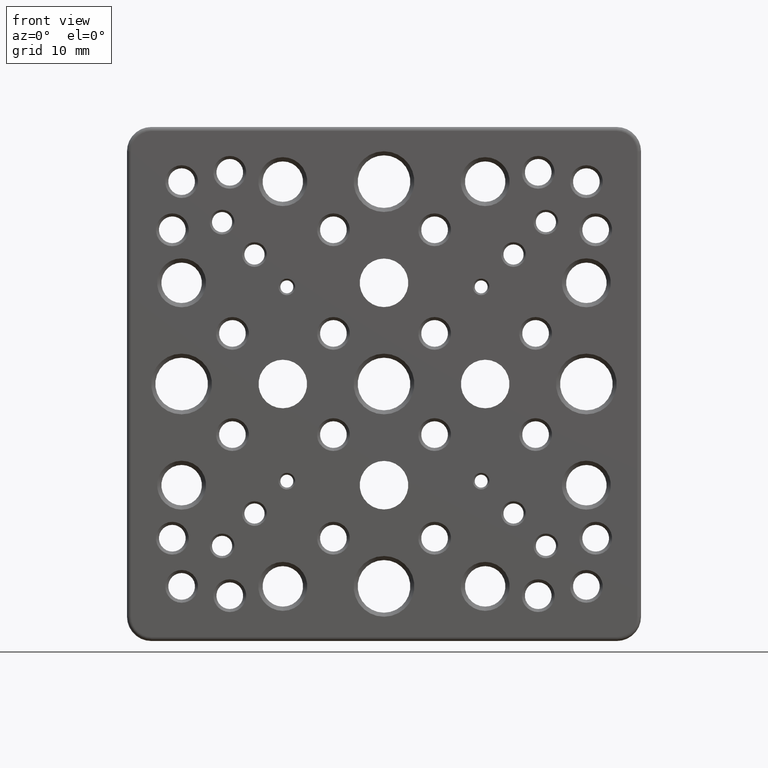
[diagram: clean part render]
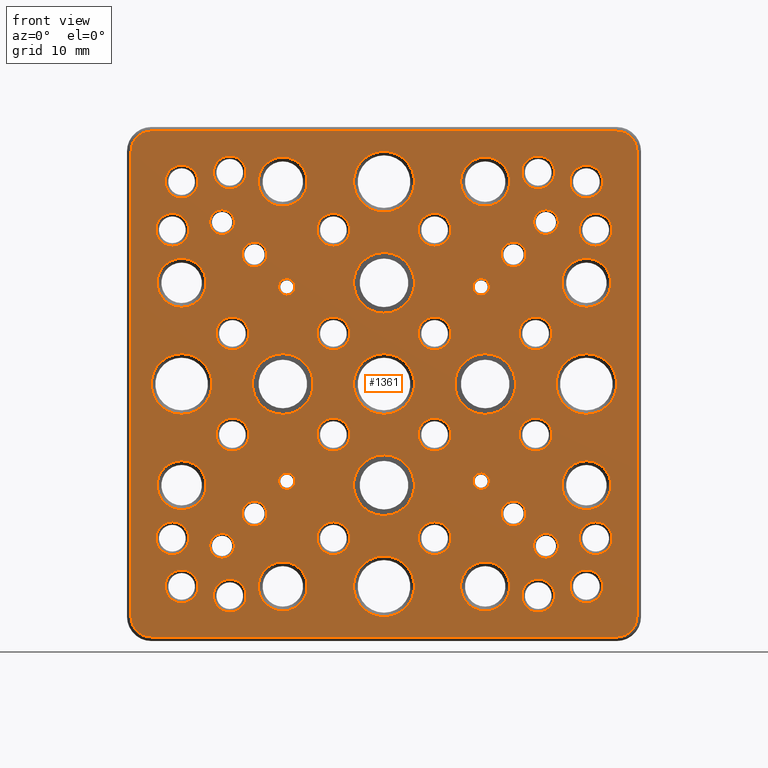
[diagram: same view with one face highlighted and labeled with its STEP entity id]
A machine part, front view. The second image highlights one B-rep face of the part: STEP entity #1361.
In plain terms, the highlighted planar face has unit normal (0, 1, 0).
Its self-contained STEP definition (entity closure, byte-faithful):
#4 = ORIENTED_EDGE ( 'NONE', *, *, #227, .F. ) ;
#6 = LINE ( 'NONE', #1012, #1642 ) ;
#7 = DIRECTION ( 'NONE',  ( 0.000000000000000000, 0.000000000000000000, -1.000000000000000000 ) ) ;
#17 = CARTESIAN_POINT ( 'NONE',  ( 12.00000000000000178, 0.000000000000000000, -13.02500000000000213 ) ) ;
#19 = AXIS2_PLACEMENT_3D ( 'NONE', #3150, #2188, #1275 ) ;
#25 = CARTESIAN_POINT ( 'NONE',  ( 26.14999999999999858, 0.000000000000000000, 19.05000000000000071 ) ) ;
#36 = DIRECTION ( 'NONE',  ( 0.000000000000000000, 1.000000000000000000, 0.000000000000000000 ) ) ;
#38 = DIRECTION ( 'NONE',  ( 0.000000000000000000, 0.000000000000000000, -1.000000000000000000 ) ) ;
#40 = DIRECTION ( 'NONE',  ( 0.000000000000000000, 0.000000000000000000, -1.000000000000000000 ) ) ;
#44 = CARTESIAN_POINT ( 'NONE',  ( 25.00000000000000000, 0.000000000000000000, 12.50000000000000000 ) ) ;
#49 = EDGE_LOOP ( 'NONE', ( #1472 ) ) ;
#51 = DIRECTION ( 'NONE',  ( 0.000000000000000000, 1.000000000000000000, 0.000000000000000000 ) ) ;
#54 = FACE_BOUND ( 'NONE', #2462, .T. ) ;
#56 = CARTESIAN_POINT ( 'NONE',  ( -6.250000000000002665, 0.000000000000000000, -8.275000000000003908 ) ) ;
#62 = DIRECTION ( 'NONE',  ( -0.000000000000000000, -1.000000000000000000, -0.000000000000000000 ) ) ;
#64 = EDGE_LOOP ( 'NONE', ( #522 ) ) ;
#65 = EDGE_CURVE ( 'NONE', #1395, #1395, #3591, .T. ) ;
#66 = CARTESIAN_POINT ( 'NONE',  ( 6.250000000000000888, 0.000000000000000000, 19.04999999999999716 ) ) ;
#83 = AXIS2_PLACEMENT_3D ( 'NONE', #860, #1807, #1155 ) ;
#84 = DIRECTION ( 'NONE',  ( 0.000000000000000000, 0.000000000000000000, -1.000000000000000000 ) ) ;
#91 = ORIENTED_EDGE ( 'NONE', *, *, #1239, .F. ) ;
#97 = FACE_BOUND ( 'NONE', #257, .T. ) ;
#117 = FACE_BOUND ( 'NONE', #807, .T. ) ;
#136 = EDGE_LOOP ( 'NONE', ( #2276 ) ) ;
#142 = EDGE_LOOP ( 'NONE', ( #553 ) ) ;
#152 = AXIS2_PLACEMENT_3D ( 'NONE', #2401, #3972, #3713 ) ;
#153 = AXIS2_PLACEMENT_3D ( 'NONE', #396, #2171, #2525 ) ;
#157 = EDGE_CURVE ( 'NONE', #3594, #3594, #3453, .T. ) ;
#160 = ORIENTED_EDGE ( 'NONE', *, *, #1014, .F. ) ;
#174 = CARTESIAN_POINT ( 'NONE',  ( 6.249999999999997335, 0.000000000000000000, -6.250000000000003553 ) ) ;
#198 = EDGE_LOOP ( 'NONE', ( #3309 ) ) ;
#199 = CARTESIAN_POINT ( 'NONE',  ( -28.74999999999998579, 0.000000000000000000, 28.75000000000000000 ) ) ;
#218 = ORIENTED_EDGE ( 'NONE', *, *, #3145, .T. ) ;
#224 = VERTEX_POINT ( 'NONE', #2117 ) ;
#227 = EDGE_CURVE ( 'NONE', #2749, #2749, #2435, .T. ) ;
#230 = CARTESIAN_POINT ( 'NONE',  ( 12.49999999999999822, 0.000000000000000000, 21.97500000000000142 ) ) ;
#232 = EDGE_CURVE ( 'NONE', #1507, #1507, #3682, .T. ) ;
#253 = EDGE_CURVE ( 'NONE', #3040, #3040, #3619, .T. ) ;
#254 = EDGE_CURVE ( 'NONE', #2143, #2143, #1907, .T. ) ;
#257 = EDGE_LOOP ( 'NONE', ( #1857 ) ) ;
#260 = ORIENTED_EDGE ( 'NONE', *, *, #1834, .T. ) ;
#271 = DIRECTION ( 'NONE',  ( -0.000000000000000000, -1.000000000000000000, -0.000000000000000000 ) ) ;
#276 = ORIENTED_EDGE ( 'NONE', *, *, #3570, .F. ) ;
#282 = ORIENTED_EDGE ( 'NONE', *, *, #3189, .F. ) ;
#284 = CARTESIAN_POINT ( 'NONE',  ( 6.249999999999996447, 0.000000000000000000, 4.224999999999996980 ) ) ;
#289 = VERTEX_POINT ( 'NONE', #3325 ) ;
#290 = AXIS2_PLACEMENT_3D ( 'NONE', #66, #2236, #648 ) ;
#296 = EDGE_LOOP ( 'NONE', ( #1593 ) ) ;
#306 = EDGE_LOOP ( 'NONE', ( #904 ) ) ;
#310 = EDGE_LOOP ( 'NONE', ( #260 ) ) ;
#330 = DIRECTION ( 'NONE',  ( 0.000000000000000000, 0.000000000000000000, 1.000000000000000000 ) ) ;
#338 = CIRCLE ( 'NONE', #2281, 1.524999999999998579 ) ;
#341 = FACE_BOUND ( 'NONE', #2576, .T. ) ;
#358 = DIRECTION ( 'NONE',  ( -0.000000000000000000, -1.000000000000000000, -0.000000000000000000 ) ) ;
#363 = FACE_BOUND ( 'NONE', #3896, .T. ) ;
#368 = ORIENTED_EDGE ( 'NONE', *, *, #157, .F. ) ;
#386 = DIRECTION ( 'NONE',  ( -0.000000000000000000, -1.000000000000000000, -0.000000000000000000 ) ) ;
#387 = VERTEX_POINT ( 'NONE', #3507 ) ;
#389 = VERTEX_POINT ( 'NONE', #1858 ) ;
#396 = CARTESIAN_POINT ( 'NONE',  ( -19.99999999999999645, 0.000000000000000000, -19.99999999999999289 ) ) ;
#401 = CIRCLE ( 'NONE', #3848, 1.524999999999998579 ) ;
#404 = FACE_BOUND ( 'NONE', #844, .T. ) ;
#407 = EDGE_CURVE ( 'NONE', #3383, #3383, #655, .T. ) ;
#410 = CIRCLE ( 'NONE', #2478, 3.024999999999999911 ) ;
#413 = VERTEX_POINT ( 'NONE', #765 ) ;
#416 = DIRECTION ( 'NONE',  ( -0.000000000000000000, -1.000000000000000000, -0.000000000000000000 ) ) ;
#423 = DIRECTION ( 'NONE',  ( 0.000000000000000000, 0.000000000000000000, -1.000000000000000000 ) ) ;
#426 = EDGE_CURVE ( 'NONE', #289, #289, #2412, .T. ) ;
#431 = FACE_BOUND ( 'NONE', #2177, .T. ) ;
#435 = ORIENTED_EDGE ( 'NONE', *, *, #1796, .F. ) ;
#437 = CARTESIAN_POINT ( 'NONE',  ( -24.99999999999999645, 0.000000000000000000, 22.97499999999999432 ) ) ;
#444 = EDGE_LOOP ( 'NONE', ( #1912 ) ) ;
#463 = DIRECTION ( 'NONE',  ( -0.000000000000000000, -1.000000000000000000, -0.000000000000000000 ) ) ;
#470 = FACE_BOUND ( 'NONE', #2717, .T. ) ;
#471 = AXIS2_PLACEMENT_3D ( 'NONE', #2316, #3574, #3895 ) ;
#476 = DIRECTION ( 'NONE',  ( 0.000000000000000000, 0.000000000000000000, -1.000000000000000000 ) ) ;
#478 = AXIS2_PLACEMENT_3D ( 'NONE', #1539, #1518, #2492 ) ;
#482 = CARTESIAN_POINT ( 'NONE',  ( 28.74999999999999645, 0.000000000000000000, -28.74999999999999289 ) ) ;
#499 = DIRECTION ( 'NONE',  ( 0.000000000000000000, 0.000000000000000000, -1.000000000000000000 ) ) ;
#502 = EDGE_LOOP ( 'NONE', ( #2647 ) ) ;
#508 = CARTESIAN_POINT ( 'NONE',  ( -6.250000000000000000, 0.000000000000000000, -21.07499999999999929 ) ) ;
#517 = VERTEX_POINT ( 'NONE', #3010 ) ;
#522 = ORIENTED_EDGE ( 'NONE', *, *, #1134, .F. ) ;
#523 = AXIS2_PLACEMENT_3D ( 'NONE', #2777, #2132, #3373 ) ;
#546 = EDGE_CURVE ( 'NONE', #387, #1529, #3330, .T. ) ;
#552 = AXIS2_PLACEMENT_3D ( 'NONE', #2937, #2565, #751 ) ;
#553 = ORIENTED_EDGE ( 'NONE', *, *, #863, .F. ) ;
#555 = CIRCLE ( 'NONE', #2437, 2.024999999999999023 ) ;
#560 = LINE ( 'NONE', #2407, #3402 ) ;
#562 = VERTEX_POINT ( 'NONE', #508 ) ;
#570 = EDGE_LOOP ( 'NONE', ( #1827 ) ) ;
#577 = DIRECTION ( 'NONE',  ( -2.185478394931410575E-16, 0.000000000000000000, -1.000000000000000000 ) ) ;
#596 = CIRCLE ( 'NONE', #478, 2.024999999999999911 ) ;
#607 = CARTESIAN_POINT ( 'NONE',  ( -24.99999999999998934, 0.000000000000000000, -12.50000000000000000 ) ) ;
#615 = DIRECTION ( 'NONE',  ( -0.000000000000000000, -1.000000000000000000, -0.000000000000000000 ) ) ;
#629 = CARTESIAN_POINT ( 'NONE',  ( -12.00000000000000178, 0.000000000000000000, 11.99999999999999822 ) ) ;
#633 = DIRECTION ( 'NONE',  ( 0.000000000000000000, 0.000000000000000000, -1.000000000000000000 ) ) ;
#642 = CARTESIAN_POINT ( 'NONE',  ( -16.00000000000000000, 0.000000000000000000, -17.52499999999999858 ) ) ;
#643 = CARTESIAN_POINT ( 'NONE',  ( 0.000000000000000000, -2.143131898507863367E-16, 12.50000000000000000 ) ) ;
#648 = DIRECTION ( 'NONE',  ( 0.000000000000000000, 0.000000000000000000, -1.000000000000000000 ) ) ;
#655 = CIRCLE ( 'NONE', #2349, 3.024999999999999911 ) ;
#659 = FACE_BOUND ( 'NONE', #3084, .T. ) ;
#663 = CIRCLE ( 'NONE', #2552, 2.025000000000000799 ) ;
#673 = DIRECTION ( 'NONE',  ( 0.000000000000000000, 1.000000000000000000, 0.000000000000000000 ) ) ;
#674 = DIRECTION ( 'NONE',  ( 0.000000000000000000, 1.000000000000000000, 0.000000000000000000 ) ) ;
#680 = DIRECTION ( 'NONE',  ( 0.000000000000000000, -0.000000000000000000, 1.000000000000000000 ) ) ;
#682 = AXIS2_PLACEMENT_3D ( 'NONE', #2955, #3298, #2054 ) ;
#684 = CARTESIAN_POINT ( 'NONE',  ( -28.74999999999998579, 0.000000000000000000, 31.25000000000000000 ) ) ;
#699 = EDGE_CURVE ( 'NONE', #3708, #3708, #822, .T. ) ;
#708 = DIRECTION ( 'NONE',  ( -0.000000000000000000, -1.000000000000000000, -0.000000000000000000 ) ) ;
#709 = CARTESIAN_POINT ( 'NONE',  ( 20.00000000000000355, 0.000000000000000000, -19.99999999999999289 ) ) ;
#713 = CARTESIAN_POINT ( 'NONE',  ( 12.00000000000000178, 0.000000000000000000, -12.00000000000000178 ) ) ;
#722 = FACE_BOUND ( 'NONE', #3244, .T. ) ;
#724 = CARTESIAN_POINT ( 'NONE',  ( 0.000000000000000000, 0.000000000000000000, 28.75000000000001066 ) ) ;
#725 = CIRCLE ( 'NONE', #849, 2.024999999999999023 ) ;
#729 = VERTEX_POINT ( 'NONE', #3910 ) ;
#733 = ORIENTED_EDGE ( 'NONE', *, *, #1249, .F. ) ;
#735 = CIRCLE ( 'NONE', #3731, 3.750000000000013767 ) ;
#739 = DIRECTION ( 'NONE',  ( -0.000000000000000000, -1.000000000000000000, -0.000000000000000000 ) ) ;
#740 = AXIS2_PLACEMENT_3D ( 'NONE', #3470, #673, #1905 ) ;
#750 = CARTESIAN_POINT ( 'NONE',  ( 16.00000000000000000, 0.000000000000000000, 16.00000000000000355 ) ) ;
#751 = DIRECTION ( 'NONE',  ( 0.000000000000000000, 0.000000000000000000, -1.000000000000000000 ) ) ;
#758 = ORIENTED_EDGE ( 'NONE', *, *, #3820, .T. ) ;
#765 = CARTESIAN_POINT ( 'NONE',  ( 6.250000000000000888, 0.000000000000000000, 17.02499999999999858 ) ) ;
#766 = FACE_BOUND ( 'NONE', #1619, .T. ) ;
#768 = EDGE_LOOP ( 'NONE', ( #1720 ) ) ;
#771 = AXIS2_PLACEMENT_3D ( 'NONE', #2491, #358, #633 ) ;
#777 = DIRECTION ( 'NONE',  ( 0.000000000000000000, 0.000000000000000000, 1.000000000000000000 ) ) ;
#781 = VERTEX_POINT ( 'NONE', #2025 ) ;
#793 = AXIS2_PLACEMENT_3D ( 'NONE', #2152, #1470, #2793 ) ;
#807 = EDGE_LOOP ( 'NONE', ( #1945 ) ) ;
#811 = VERTEX_POINT ( 'NONE', #684 ) ;
#817 = DIRECTION ( 'NONE',  ( 0.000000000000000000, 0.000000000000000000, -1.000000000000000000 ) ) ;
#822 = CIRCLE ( 'NONE', #1921, 2.024999999999999023 ) ;
#825 = ORIENTED_EDGE ( 'NONE', *, *, #2264, .F. ) ;
#833 = VERTEX_POINT ( 'NONE', #1439 ) ;
#844 = EDGE_LOOP ( 'NONE', ( #4025 ) ) ;
#849 = AXIS2_PLACEMENT_3D ( 'NONE', #2501, #62, #1940 ) ;
#857 = CIRCLE ( 'NONE', #793, 2.024999999999999023 ) ;
#860 = CARTESIAN_POINT ( 'NONE',  ( 6.250000000000000888, 0.000000000000000000, -19.05000000000000071 ) ) ;
#863 = EDGE_CURVE ( 'NONE', #2063, #2063, #3631, .T. ) ;
#873 = CARTESIAN_POINT ( 'NONE',  ( 12.50000000000000533, 0.000000000000000000, -25.00000000000000000 ) ) ;
#881 = VERTEX_POINT ( 'NONE', #1179 ) ;
#893 = CARTESIAN_POINT ( 'NONE',  ( 19.04999999999999716, 0.000000000000000000, 26.14999999999999503 ) ) ;
#904 = ORIENTED_EDGE ( 'NONE', *, *, #4011, .F. ) ;
#905 = EDGE_CURVE ( 'NONE', #3066, #811, #1937, .T. ) ;
#906 = CARTESIAN_POINT ( 'NONE',  ( 25.00000000000000355, 0.000000000000000000, 22.97499999999999432 ) ) ;
#911 = DIRECTION ( 'NONE',  ( 0.000000000000000000, 0.000000000000000000, -1.000000000000000000 ) ) ;
#919 = CIRCLE ( 'NONE', #3729, 3.750000000000023981 ) ;
#930 = EDGE_LOOP ( 'NONE', ( #3644 ) ) ;
#939 = VERTEX_POINT ( 'NONE', #2179 ) ;
#942 = EDGE_CURVE ( 'NONE', #1464, #1464, #2526, .T. ) ;
#953 = ORIENTED_EDGE ( 'NONE', *, *, #1835, .F. ) ;
#958 = EDGE_LOOP ( 'NONE', ( #2924 ) ) ;
#962 = CARTESIAN_POINT ( 'NONE',  ( 12.50000000000000355, -2.143131898507863367E-16, -3.750000000000013767 ) ) ;
#966 = EDGE_LOOP ( 'NONE', ( #3147 ) ) ;
#975 = DIRECTION ( 'NONE',  ( 0.000000000000000000, 0.000000000000000000, -1.000000000000000000 ) ) ;
#980 = ORIENTED_EDGE ( 'NONE', *, *, #407, .F. ) ;
#981 = FACE_BOUND ( 'NONE', #2768, .T. ) ;
#991 = DIRECTION ( 'NONE',  ( -0.000000000000000000, -1.000000000000000000, -0.000000000000000000 ) ) ;
#999 = DIRECTION ( 'NONE',  ( -0.000000000000000000, -1.000000000000000000, -0.000000000000000000 ) ) ;
#1002 = FACE_BOUND ( 'NONE', #2263, .T. ) ;
#1012 = CARTESIAN_POINT ( 'NONE',  ( 31.25000000000000711, 0.000000000000000000, -6.829619984160659821E-15 ) ) ;
#1014 = EDGE_CURVE ( 'NONE', #3426, #3426, #2659, .T. ) ;
#1020 = FACE_BOUND ( 'NONE', #3043, .T. ) ;
#1025 = VERTEX_POINT ( 'NONE', #3528 ) ;
#1027 = DIRECTION ( 'NONE',  ( -0.000000000000000000, -1.000000000000000000, -0.000000000000000000 ) ) ;
#1028 = VECTOR ( 'NONE', #3718, 1000.000000000000000 ) ;
#1029 = ORIENTED_EDGE ( 'NONE', *, *, #2506, .F. ) ;
#1033 = CARTESIAN_POINT ( 'NONE',  ( -24.99999999999999645, 0.000000000000000000, 24.99999999999999289 ) ) ;
#1046 = DIRECTION ( 'NONE',  ( -0.000000000000000000, -1.000000000000000000, -0.000000000000000000 ) ) ;
#1047 = CIRCLE ( 'NONE', #3339, 2.024999999999999023 ) ;
#1066 = FACE_BOUND ( 'NONE', #958, .T. ) ;
#1076 = CARTESIAN_POINT ( 'NONE',  ( -28.75000000000000000, 0.000000000000000000, -31.25000000000000000 ) ) ;
#1083 = FACE_BOUND ( 'NONE', #1686, .T. ) ;
#1084 = DIRECTION ( 'NONE',  ( -0.000000000000000000, -1.000000000000000000, -0.000000000000000000 ) ) ;
#1086 = ORIENTED_EDGE ( 'NONE', *, *, #2697, .F. ) ;
#1103 = EDGE_CURVE ( 'NONE', #1590, #1590, #2189, .T. ) ;
#1105 = AXIS2_PLACEMENT_3D ( 'NONE', #482, #1711, #2972 ) ;
#1116 = AXIS2_PLACEMENT_3D ( 'NONE', #2824, #36, #680 ) ;
#1119 = DIRECTION ( 'NONE',  ( -0.000000000000000000, -1.000000000000000000, -0.000000000000000000 ) ) ;
#1134 = EDGE_CURVE ( 'NONE', #1939, #1939, #2214, .T. ) ;
#1140 = VERTEX_POINT ( 'NONE', #284 ) ;
#1153 = EDGE_LOOP ( 'NONE', ( #2693 ) ) ;
#1155 = DIRECTION ( 'NONE',  ( 0.000000000000000000, 0.000000000000000000, -1.000000000000000000 ) ) ;
#1173 = ORIENTED_EDGE ( 'NONE', *, *, #3789, .F. ) ;
#1175 = DIRECTION ( 'NONE',  ( -0.000000000000000000, -1.000000000000000000, -0.000000000000000000 ) ) ;
#1179 = CARTESIAN_POINT ( 'NONE',  ( 25.00000000000000000, 0.000000000000000000, 3.750000000000023981 ) ) ;
#1191 = EDGE_CURVE ( 'NONE', #2563, #2563, #725, .T. ) ;
#1224 = DIRECTION ( 'NONE',  ( 0.000000000000000000, 0.000000000000000000, -1.000000000000000000 ) ) ;
#1229 = EDGE_CURVE ( 'NONE', #389, #389, #1556, .T. ) ;
#1230 = CIRCLE ( 'NONE', #3653, 2.024999999999999023 ) ;
#1233 = CIRCLE ( 'NONE', #83, 2.024999999999999023 ) ;
#1237 = DIRECTION ( 'NONE',  ( 0.000000000000000000, 0.000000000000000000, -1.000000000000000000 ) ) ;
#1239 = EDGE_CURVE ( 'NONE', #3768, #3768, #1230, .T. ) ;
#1249 = EDGE_CURVE ( 'NONE', #3203, #3203, #338, .T. ) ;
#1265 = FACE_BOUND ( 'NONE', #3032, .T. ) ;
#1275 = DIRECTION ( 'NONE',  ( 0.000000000000000000, 0.000000000000000000, -1.000000000000000000 ) ) ;
#1283 = FACE_BOUND ( 'NONE', #3343, .T. ) ;
#1285 = CARTESIAN_POINT ( 'NONE',  ( 6.250000000000000888, 0.000000000000000000, -21.07499999999999929 ) ) ;
#1286 = CIRCLE ( 'NONE', #2667, 1.024999999999999911 ) ;
#1293 = DIRECTION ( 'NONE',  ( -0.000000000000000000, -1.000000000000000000, -0.000000000000000000 ) ) ;
#1300 = AXIS2_PLACEMENT_3D ( 'NONE', #2852, #3465, #3119 ) ;
#1303 = FACE_BOUND ( 'NONE', #3038, .T. ) ;
#1306 = VERTEX_POINT ( 'NONE', #2557 ) ;
#1315 = ORIENTED_EDGE ( 'NONE', *, *, #905, .T. ) ;
#1325 = FACE_BOUND ( 'NONE', #3746, .T. ) ;
#1330 = VERTEX_POINT ( 'NONE', #3550 ) ;
#1336 = CARTESIAN_POINT ( 'NONE',  ( 0.000000000000000000, 0.000000000000000000, 25.00000000000000000 ) ) ;
#1342 = FACE_BOUND ( 'NONE', #3694, .T. ) ;
#1344 = CARTESIAN_POINT ( 'NONE',  ( -19.99999999999999645, 0.000000000000000000, -21.52499999999999147 ) ) ;
#1348 = CARTESIAN_POINT ( 'NONE',  ( 11.99999999999999822, 0.000000000000000000, 10.97499999999999787 ) ) ;
#1358 = VERTEX_POINT ( 'NONE', #1967 ) ;
#1361 = ADVANCED_FACE ( 'NONE', ( #766, #3265, #2936, #1066, #470, #1391, #1406, #1083, #2331, #2666, #1933, #1566, #1628, #1020, #3780, #2196, #2845, #659, #1325, #1002, #117, #1265, #3157, #3197, #3455, #2289, #981, #2577, #1303, #404, #3825, #341, #363, #1894, #1342, #1872, #2890, #1585, #54, #3176, #97, #2265, #1283, #431, #3845, #1650, #2512, #2533, #3521, #3132, #722, #2596, #2224, #1955 ), #3479, .F. ) ;
#1370 = VERTEX_POINT ( 'NONE', #2271 ) ;
#1390 = VERTEX_POINT ( 'NONE', #1348 ) ;
#1391 = FACE_BOUND ( 'NONE', #1974, .T. ) ;
#1395 = VERTEX_POINT ( 'NONE', #2649 ) ;
#1406 = FACE_BOUND ( 'NONE', #142, .T. ) ;
#1409 = AXIS2_PLACEMENT_3D ( 'NONE', #1762, #3385, #1465 ) ;
#1411 = EDGE_CURVE ( 'NONE', #811, #2791, #1830, .T. ) ;
#1412 = DIRECTION ( 'NONE',  ( 0.000000000000000000, 0.000000000000000000, -1.000000000000000000 ) ) ;
#1423 = AXIS2_PLACEMENT_3D ( 'NONE', #1567, #1449, #38 ) ;
#1428 = AXIS2_PLACEMENT_3D ( 'NONE', #3674, #2065, #1844 ) ;
#1434 = CIRCLE ( 'NONE', #153, 1.524999999999998579 ) ;
#1439 = CARTESIAN_POINT ( 'NONE',  ( -24.99999999999999289, 0.000000000000000000, 3.750000000000023981 ) ) ;
#1445 = ORIENTED_EDGE ( 'NONE', *, *, #546, .T. ) ;
#1449 = DIRECTION ( 'NONE',  ( -0.000000000000000000, -1.000000000000000000, -0.000000000000000000 ) ) ;
#1451 = DIRECTION ( 'NONE',  ( -0.000000000000000000, -1.000000000000000000, -0.000000000000000000 ) ) ;
#1459 = EDGE_LOOP ( 'NONE', ( #3839 ) ) ;
#1464 = VERTEX_POINT ( 'NONE', #2727 ) ;
#1465 = DIRECTION ( 'NONE',  ( 0.000000000000000000, 0.000000000000000000, -1.000000000000000000 ) ) ;
#1470 = DIRECTION ( 'NONE',  ( -0.000000000000000000, -1.000000000000000000, -0.000000000000000000 ) ) ;
#1472 = ORIENTED_EDGE ( 'NONE', *, *, #2382, .T. ) ;
#1490 = CARTESIAN_POINT ( 'NONE',  ( -26.14999999999999503, 0.000000000000000000, -19.04999999999999361 ) ) ;
#1494 = AXIS2_PLACEMENT_3D ( 'NONE', #1336, #2837, #2588 ) ;
#1501 = EDGE_CURVE ( 'NONE', #1548, #1548, #555, .T. ) ;
#1507 = VERTEX_POINT ( 'NONE', #3026 ) ;
#1518 = DIRECTION ( 'NONE',  ( -0.000000000000000000, -1.000000000000000000, -0.000000000000000000 ) ) ;
#1519 = ORIENTED_EDGE ( 'NONE', *, *, #2651, .T. ) ;
#1520 = EDGE_CURVE ( 'NONE', #2500, #2500, #3356, .T. ) ;
#1528 = DIRECTION ( 'NONE',  ( -0.000000000000000000, -1.000000000000000000, -0.000000000000000000 ) ) ;
#1529 = VERTEX_POINT ( 'NONE', #1076 ) ;
#1533 = DIRECTION ( 'NONE',  ( 2.185478394931410575E-16, -0.000000000000000000, 1.000000000000000000 ) ) ;
#1539 = CARTESIAN_POINT ( 'NONE',  ( -6.250000000000002665, 0.000000000000000000, -6.250000000000004441 ) ) ;
#1548 = VERTEX_POINT ( 'NONE', #1900 ) ;
#1551 = EDGE_CURVE ( 'NONE', #3750, #3750, #401, .T. ) ;
#1556 = CIRCLE ( 'NONE', #3856, 3.750000000000013767 ) ;
#1559 = EDGE_LOOP ( 'NONE', ( #91 ) ) ;
#1566 = FACE_BOUND ( 'NONE', #966, .T. ) ;
#1567 = CARTESIAN_POINT ( 'NONE',  ( -6.250000000000000000, 0.000000000000000000, -19.05000000000000071 ) ) ;
#1578 = AXIS2_PLACEMENT_3D ( 'NONE', #709, #2206, #1639 ) ;
#1585 = FACE_BOUND ( 'NONE', #306, .T. ) ;
#1587 = VERTEX_POINT ( 'NONE', #56 ) ;
#1590 = VERTEX_POINT ( 'NONE', #2540 ) ;
#1593 = ORIENTED_EDGE ( 'NONE', *, *, #1103, .F. ) ;
#1604 = EDGE_LOOP ( 'NONE', ( #1315, #3964, #218, #1445, #2011, #3449, #3107, #2395 ) ) ;
#1608 = CIRCLE ( 'NONE', #771, 3.024999999999999911 ) ;
#1612 = CARTESIAN_POINT ( 'NONE',  ( 16.00000000000000000, 0.000000000000000000, 14.47500000000000497 ) ) ;
#1619 = EDGE_LOOP ( 'NONE', ( #1173 ) ) ;
#1626 = CIRCLE ( 'NONE', #1105, 2.499999999999998668 ) ;
#1628 = FACE_BOUND ( 'NONE', #1676, .T. ) ;
#1639 = DIRECTION ( 'NONE',  ( 0.000000000000000000, 0.000000000000000000, -1.000000000000000000 ) ) ;
#1640 = EDGE_CURVE ( 'NONE', #2982, #2982, #2868, .T. ) ;
#1642 = VECTOR ( 'NONE', #1533, 1000.000000000000000 ) ;
#1650 = FACE_BOUND ( 'NONE', #444, .T. ) ;
#1653 = DIRECTION ( 'NONE',  ( -1.000000000000000000, 0.000000000000000000, -0.000000000000000000 ) ) ;
#1655 = EDGE_CURVE ( 'NONE', #729, #729, #3641, .T. ) ;
#1676 = EDGE_LOOP ( 'NONE', ( #435 ) ) ;
#1678 = DIRECTION ( 'NONE',  ( 0.000000000000000000, 0.000000000000000000, -1.000000000000000000 ) ) ;
#1686 = EDGE_LOOP ( 'NONE', ( #1765 ) ) ;
#1701 = CIRCLE ( 'NONE', #3925, 1.024999999999999911 ) ;
#1708 = DIRECTION ( 'NONE',  ( 0.000000000000000000, 0.000000000000000000, -1.000000000000000000 ) ) ;
#1709 = CIRCLE ( 'NONE', #3413, 2.024999999999999023 ) ;
#1711 = DIRECTION ( 'NONE',  ( -0.000000000000000000, -1.000000000000000000, -0.000000000000000000 ) ) ;
#1712 = EDGE_CURVE ( 'NONE', #1529, #2466, #2133, .T. ) ;
#1715 = DIRECTION ( 'NONE',  ( -0.000000000000000000, -1.000000000000000000, -0.000000000000000000 ) ) ;
#1720 = ORIENTED_EDGE ( 'NONE', *, *, #1191, .F. ) ;
#1734 = DIRECTION ( 'NONE',  ( -0.000000000000000000, -1.000000000000000000, -0.000000000000000000 ) ) ;
#1747 = EDGE_LOOP ( 'NONE', ( #2776 ) ) ;
#1754 = VERTEX_POINT ( 'NONE', #3358 ) ;
#1762 = CARTESIAN_POINT ( 'NONE',  ( -19.04999999999999716, 0.000000000000000000, -26.15000000000000213 ) ) ;
#1765 = ORIENTED_EDGE ( 'NONE', *, *, #1655, .F. ) ;
#1788 = CARTESIAN_POINT ( 'NONE',  ( -12.50000000000000178, 0.000000000000000000, 25.00000000000000000 ) ) ;
#1792 = DIRECTION ( 'NONE',  ( 0.000000000000000000, 0.000000000000000000, -1.000000000000000000 ) ) ;
#1796 = EDGE_CURVE ( 'NONE', #781, #781, #1608, .T. ) ;
#1802 = CARTESIAN_POINT ( 'NONE',  ( 12.50000000000000355, -2.143131898507863367E-16, 0.000000000000000000 ) ) ;
#1807 = DIRECTION ( 'NONE',  ( -0.000000000000000000, -1.000000000000000000, -0.000000000000000000 ) ) ;
#1817 = AXIS2_PLACEMENT_3D ( 'NONE', #3254, #2341, #499 ) ;
#1827 = ORIENTED_EDGE ( 'NONE', *, *, #3854, .T. ) ;
#1830 = CIRCLE ( 'NONE', #2159, 2.499999999999998668 ) ;
#1834 = EDGE_CURVE ( 'NONE', #2643, #2643, #3905, .T. ) ;
#1835 = EDGE_CURVE ( 'NONE', #1390, #1390, #1286, .T. ) ;
#1844 = DIRECTION ( 'NONE',  ( 0.000000000000000000, 0.000000000000000000, -1.000000000000000000 ) ) ;
#1854 = VERTEX_POINT ( 'NONE', #962 ) ;
#1856 = CARTESIAN_POINT ( 'NONE',  ( 25.00000000000000355, 0.000000000000000000, 24.99999999999999289 ) ) ;
#1857 = ORIENTED_EDGE ( 'NONE', *, *, #1917, .F. ) ;
#1858 = CARTESIAN_POINT ( 'NONE',  ( -12.50000000000000000, -2.143131898507863367E-16, -3.750000000000013767 ) ) ;
#1861 = EDGE_LOOP ( 'NONE', ( #1086 ) ) ;
#1863 = DIRECTION ( 'NONE',  ( -0.000000000000000000, -1.000000000000000000, -0.000000000000000000 ) ) ;
#1866 = CIRCLE ( 'NONE', #1931, 2.024999999999999911 ) ;
#1872 = FACE_BOUND ( 'NONE', #1459, .T. ) ;
#1877 = ORIENTED_EDGE ( 'NONE', *, *, #1640, .F. ) ;
#1880 = DIRECTION ( 'NONE',  ( -0.000000000000000000, -1.000000000000000000, -0.000000000000000000 ) ) ;
#1886 = ORIENTED_EDGE ( 'NONE', *, *, #3720, .F. ) ;
#1890 = CIRCLE ( 'NONE', #3794, 1.024999999999999911 ) ;
#1894 = FACE_BOUND ( 'NONE', #3302, .T. ) ;
#1900 = CARTESIAN_POINT ( 'NONE',  ( 26.14999999999999858, 0.000000000000000000, -21.07499999999999218 ) ) ;
#1902 = EDGE_CURVE ( 'NONE', #1370, #1370, #2862, .T. ) ;
#1905 = DIRECTION ( 'NONE',  ( 0.000000000000000000, 0.000000000000000000, 1.000000000000000000 ) ) ;
#1907 = CIRCLE ( 'NONE', #1578, 1.524999999999998579 ) ;
#1912 = ORIENTED_EDGE ( 'NONE', *, *, #1229, .F. ) ;
#1917 = EDGE_CURVE ( 'NONE', #3851, #3851, #3315, .T. ) ;
#1921 = AXIS2_PLACEMENT_3D ( 'NONE', #1856, #2140, #1792 ) ;
#1923 = EDGE_LOOP ( 'NONE', ( #1886 ) ) ;
#1931 = AXIS2_PLACEMENT_3D ( 'NONE', #2986, #2300, #1412 ) ;
#1933 = FACE_BOUND ( 'NONE', #3706, .T. ) ;
#1937 = LINE ( 'NONE', #3225, #3255 ) ;
#1939 = VERTEX_POINT ( 'NONE', #2519 ) ;
#1940 = DIRECTION ( 'NONE',  ( 0.000000000000000000, 0.000000000000000000, -1.000000000000000000 ) ) ;
#1945 = ORIENTED_EDGE ( 'NONE', *, *, #3571, .F. ) ;
#1955 = FACE_OUTER_BOUND ( 'NONE', #1604, .T. ) ;
#1957 = AXIS2_PLACEMENT_3D ( 'NONE', #873, #2109, #911 ) ;
#1963 = CARTESIAN_POINT ( 'NONE',  ( 0.000000000000000000, 0.000000000000000000, -21.24999999999999289 ) ) ;
#1967 = CARTESIAN_POINT ( 'NONE',  ( 31.24999999999999645, 0.000000000000000000, -28.74999999999999289 ) ) ;
#1974 = EDGE_LOOP ( 'NONE', ( #2160 ) ) ;
#1987 = CARTESIAN_POINT ( 'NONE',  ( -12.50000000000000178, 0.000000000000000000, 21.97500000000000142 ) ) ;
#1993 = ORIENTED_EDGE ( 'NONE', *, *, #3936, .F. ) ;
#1999 = VERTEX_POINT ( 'NONE', #2579 ) ;
#2011 = ORIENTED_EDGE ( 'NONE', *, *, #1712, .T. ) ;
#2025 = CARTESIAN_POINT ( 'NONE',  ( -24.99999999999999289, 0.000000000000000000, 9.475000000000001421 ) ) ;
#2042 = CARTESIAN_POINT ( 'NONE',  ( -26.14999999999999503, 0.000000000000000000, -21.07499999999999218 ) ) ;
#2052 = EDGE_CURVE ( 'NONE', #2466, #1358, #1626, .T. ) ;
#2054 = DIRECTION ( 'NONE',  ( 0.000000000000000000, 0.000000000000000000, -1.000000000000000000 ) ) ;
#2063 = VERTEX_POINT ( 'NONE', #3950 ) ;
#2065 = DIRECTION ( 'NONE',  ( -0.000000000000000000, -1.000000000000000000, -0.000000000000000000 ) ) ;
#2067 = VERTEX_POINT ( 'NONE', #724 ) ;
#2081 = CIRCLE ( 'NONE', #2288, 2.024999999999999911 ) ;
#2091 = EDGE_CURVE ( 'NONE', #1330, #1330, #3211, .T. ) ;
#2097 = AXIS2_PLACEMENT_3D ( 'NONE', #44, #1880, #2752 ) ;
#2107 = ORIENTED_EDGE ( 'NONE', *, *, #2091, .F. ) ;
#2109 = DIRECTION ( 'NONE',  ( -0.000000000000000000, -1.000000000000000000, -0.000000000000000000 ) ) ;
#2114 = CARTESIAN_POINT ( 'NONE',  ( 28.75000000000001066, 0.000000000000000000, 31.25000000000000711 ) ) ;
#2116 = EDGE_LOOP ( 'NONE', ( #2269 ) ) ;
#2117 = CARTESIAN_POINT ( 'NONE',  ( 0.000000000000000000, 0.000000000000000000, 3.750000000000023981 ) ) ;
#2121 = CARTESIAN_POINT ( 'NONE',  ( 25.00000000000000000, 0.000000000000000000, 9.475000000000001421 ) ) ;
#2129 = AXIS2_PLACEMENT_3D ( 'NONE', #2174, #51, #3777 ) ;
#2132 = DIRECTION ( 'NONE',  ( -0.000000000000000000, -1.000000000000000000, -0.000000000000000000 ) ) ;
#2133 = LINE ( 'NONE', #3394, #1028 ) ;
#2135 = EDGE_CURVE ( 'NONE', #2834, #3066, #3143, .T. ) ;
#2139 = VERTEX_POINT ( 'NONE', #3399 ) ;
#2140 = DIRECTION ( 'NONE',  ( -0.000000000000000000, -1.000000000000000000, -0.000000000000000000 ) ) ;
#2143 = VERTEX_POINT ( 'NONE', #2769 ) ;
#2152 = CARTESIAN_POINT ( 'NONE',  ( -19.05000000000000426, 0.000000000000000000, 26.14999999999999503 ) ) ;
#2159 = AXIS2_PLACEMENT_3D ( 'NONE', #199, #1715, #777 ) ;
#2160 = ORIENTED_EDGE ( 'NONE', *, *, #1551, .F. ) ;
#2171 = DIRECTION ( 'NONE',  ( -0.000000000000000000, -1.000000000000000000, -0.000000000000000000 ) ) ;
#2174 = CARTESIAN_POINT ( 'NONE',  ( 0.000000000000000000, 0.000000000000000000, -25.00000000000000000 ) ) ;
#2177 = EDGE_LOOP ( 'NONE', ( #2223 ) ) ;
#2179 = CARTESIAN_POINT ( 'NONE',  ( -11.99999999999999822, 0.000000000000000000, -13.02500000000000213 ) ) ;
#2183 = CARTESIAN_POINT ( 'NONE',  ( 26.14999999999999858, 0.000000000000000000, 17.02500000000000213 ) ) ;
#2184 = DIRECTION ( 'NONE',  ( 0.000000000000000000, 0.000000000000000000, -1.000000000000000000 ) ) ;
#2185 = DIRECTION ( 'NONE',  ( 0.000000000000000000, 0.000000000000000000, -1.000000000000000000 ) ) ;
#2188 = DIRECTION ( 'NONE',  ( -0.000000000000000000, -1.000000000000000000, -0.000000000000000000 ) ) ;
#2189 = CIRCLE ( 'NONE', #2546, 3.750000000000013767 ) ;
#2196 = FACE_BOUND ( 'NONE', #2522, .T. ) ;
#2199 = VERTEX_POINT ( 'NONE', #1285 ) ;
#2206 = DIRECTION ( 'NONE',  ( -0.000000000000000000, -1.000000000000000000, -0.000000000000000000 ) ) ;
#2207 = EDGE_CURVE ( 'NONE', #3572, #3572, #1709, .T. ) ;
#2211 = DIRECTION ( 'NONE',  ( 0.000000000000000000, 0.000000000000000000, -1.000000000000000000 ) ) ;
#2213 = DIRECTION ( 'NONE',  ( 0.000000000000000000, 0.000000000000000000, -1.000000000000000000 ) ) ;
#2214 = CIRCLE ( 'NONE', #1300, 2.024999999999999023 ) ;
#2223 = ORIENTED_EDGE ( 'NONE', *, *, #1902, .F. ) ;
#2224 = FACE_BOUND ( 'NONE', #310, .T. ) ;
#2236 = DIRECTION ( 'NONE',  ( -0.000000000000000000, -1.000000000000000000, -0.000000000000000000 ) ) ;
#2245 = CARTESIAN_POINT ( 'NONE',  ( -31.24999999999998579, 0.000000000000000000, 28.74999999999999645 ) ) ;
#2263 = EDGE_LOOP ( 'NONE', ( #2688 ) ) ;
#2264 = EDGE_CURVE ( 'NONE', #413, #413, #2756, .T. ) ;
#2265 = FACE_BOUND ( 'NONE', #1747, .T. ) ;
#2269 = ORIENTED_EDGE ( 'NONE', *, *, #232, .F. ) ;
#2271 = CARTESIAN_POINT ( 'NONE',  ( -24.99999999999998934, 0.000000000000000000, -27.02500000000000568 ) ) ;
#2276 = ORIENTED_EDGE ( 'NONE', *, *, #426, .F. ) ;
#2281 = AXIS2_PLACEMENT_3D ( 'NONE', #750, #1046, #1678 ) ;
#2282 = DIRECTION ( 'NONE',  ( -0.000000000000000000, -1.000000000000000000, -0.000000000000000000 ) ) ;
#2288 = AXIS2_PLACEMENT_3D ( 'NONE', #3798, #2942, #1708 ) ;
#2289 = FACE_BOUND ( 'NONE', #198, .T. ) ;
#2300 = DIRECTION ( 'NONE',  ( -0.000000000000000000, -1.000000000000000000, -0.000000000000000000 ) ) ;
#2316 = CARTESIAN_POINT ( 'NONE',  ( -28.75000000000000000, 0.000000000000000000, -28.75000000000000000 ) ) ;
#2324 = DIRECTION ( 'NONE',  ( 0.000000000000000000, 0.000000000000000000, -1.000000000000000000 ) ) ;
#2326 = AXIS2_PLACEMENT_3D ( 'NONE', #3406, #1451, #2423 ) ;
#2327 = EDGE_LOOP ( 'NONE', ( #733 ) ) ;
#2331 = FACE_BOUND ( 'NONE', #2327, .T. ) ;
#2341 = DIRECTION ( 'NONE',  ( -0.000000000000000000, -1.000000000000000000, -0.000000000000000000 ) ) ;
#2344 = ORIENTED_EDGE ( 'NONE', *, *, #3844, .F. ) ;
#2347 = EDGE_CURVE ( 'NONE', #1358, #2834, #6, .T. ) ;
#2349 = AXIS2_PLACEMENT_3D ( 'NONE', #2876, #1027, #84 ) ;
#2352 = CIRCLE ( 'NONE', #3017, 2.024999999999999023 ) ;
#2369 = EDGE_CURVE ( 'NONE', #1025, #1025, #3740, .T. ) ;
#2382 = EDGE_CURVE ( 'NONE', #881, #881, #3931, .T. ) ;
#2395 = ORIENTED_EDGE ( 'NONE', *, *, #2135, .T. ) ;
#2401 = CARTESIAN_POINT ( 'NONE',  ( 28.75000000000001421, 0.000000000000000000, 28.75000000000000355 ) ) ;
#2402 = DIRECTION ( 'NONE',  ( -0.000000000000000000, -1.000000000000000000, -0.000000000000000000 ) ) ;
#2405 = AXIS2_PLACEMENT_3D ( 'NONE', #607, #3995, #2185 ) ;
#2407 = CARTESIAN_POINT ( 'NONE',  ( -31.24999999999999289, 0.000000000000000000, 6.829619984160656666E-15 ) ) ;
#2412 = CIRCLE ( 'NONE', #3272, 3.024999999999999911 ) ;
#2423 = DIRECTION ( 'NONE',  ( 0.000000000000000000, 0.000000000000000000, -1.000000000000000000 ) ) ;
#2435 = CIRCLE ( 'NONE', #2097, 3.024999999999999911 ) ;
#2437 = AXIS2_PLACEMENT_3D ( 'NONE', #3239, #1119, #817 ) ;
#2446 = DIRECTION ( 'NONE',  ( 0.000000000000000000, 0.000000000000000000, -1.000000000000000000 ) ) ;
#2452 = AXIS2_PLACEMENT_3D ( 'NONE', #3829, #386, #40 ) ;
#2462 = EDGE_LOOP ( 'NONE', ( #282 ) ) ;
#2466 = VERTEX_POINT ( 'NONE', #3556 ) ;
#2478 = AXIS2_PLACEMENT_3D ( 'NONE', #3476, #739, #3193 ) ;
#2491 = CARTESIAN_POINT ( 'NONE',  ( -24.99999999999999289, 0.000000000000000000, 12.50000000000000000 ) ) ;
#2492 = DIRECTION ( 'NONE',  ( 0.000000000000000000, 0.000000000000000000, -1.000000000000000000 ) ) ;
#2500 = VERTEX_POINT ( 'NONE', #2805 ) ;
#2501 = CARTESIAN_POINT ( 'NONE',  ( -26.14999999999999858, 0.000000000000000000, 19.05000000000000071 ) ) ;
#2506 = EDGE_CURVE ( 'NONE', #1140, #1140, #1866, .T. ) ;
#2511 = EDGE_LOOP ( 'NONE', ( #758 ) ) ;
#2512 = FACE_BOUND ( 'NONE', #1153, .T. ) ;
#2519 = CARTESIAN_POINT ( 'NONE',  ( 19.05000000000000426, 0.000000000000000000, -28.17500000000000071 ) ) ;
#2522 = EDGE_LOOP ( 'NONE', ( #4 ) ) ;
#2525 = DIRECTION ( 'NONE',  ( 0.000000000000000000, 0.000000000000000000, -1.000000000000000000 ) ) ;
#2526 = CIRCLE ( 'NONE', #1409, 2.024999999999999023 ) ;
#2533 = FACE_BOUND ( 'NONE', #930, .T. ) ;
#2540 = CARTESIAN_POINT ( 'NONE',  ( 0.000000000000000000, -2.143131898507863367E-16, 8.749999999999987566 ) ) ;
#2541 = CARTESIAN_POINT ( 'NONE',  ( -12.50000000000000000, -2.143131898507863367E-16, 0.000000000000000000 ) ) ;
#2546 = AXIS2_PLACEMENT_3D ( 'NONE', #643, #708, #3427 ) ;
#2552 = AXIS2_PLACEMENT_3D ( 'NONE', #174, #3234, #476 ) ;
#2557 = CARTESIAN_POINT ( 'NONE',  ( 12.50000000000000533, 0.000000000000000000, -28.02500000000000213 ) ) ;
#2560 = EDGE_LOOP ( 'NONE', ( #1877 ) ) ;
#2563 = VERTEX_POINT ( 'NONE', #2851 ) ;
#2565 = DIRECTION ( 'NONE',  ( -0.000000000000000000, -1.000000000000000000, -0.000000000000000000 ) ) ;
#2576 = EDGE_LOOP ( 'NONE', ( #2753 ) ) ;
#2577 = FACE_BOUND ( 'NONE', #1559, .T. ) ;
#2578 = CARTESIAN_POINT ( 'NONE',  ( 31.25000000000001421, 0.000000000000000000, 28.75000000000000355 ) ) ;
#2579 = CARTESIAN_POINT ( 'NONE',  ( -18.72588235294118064, 0.000000000000000000, -8.275000000000003908 ) ) ;
#2588 = DIRECTION ( 'NONE',  ( 0.000000000000000000, 0.000000000000000000, 1.000000000000000000 ) ) ;
#2596 = FACE_BOUND ( 'NONE', #49, .T. ) ;
#2618 = CIRCLE ( 'NONE', #2887, 2.024999999999999023 ) ;
#2622 = CARTESIAN_POINT ( 'NONE',  ( -12.00000000000000178, 0.000000000000000000, 10.97499999999999787 ) ) ;
#2630 = DIRECTION ( 'NONE',  ( -0.000000000000000000, -1.000000000000000000, -0.000000000000000000 ) ) ;
#2643 = VERTEX_POINT ( 'NONE', #1963 ) ;
#2647 = ORIENTED_EDGE ( 'NONE', *, *, #65, .F. ) ;
#2649 = CARTESIAN_POINT ( 'NONE',  ( 18.72588235294117354, 0.000000000000000000, -8.275000000000003908 ) ) ;
#2651 = EDGE_CURVE ( 'NONE', #224, #224, #3377, .T. ) ;
#2659 = CIRCLE ( 'NONE', #2326, 2.024999999999999911 ) ;
#2666 = FACE_BOUND ( 'NONE', #2116, .T. ) ;
#2667 = AXIS2_PLACEMENT_3D ( 'NONE', #2907, #999, #975 ) ;
#2671 = DIRECTION ( 'NONE',  ( 0.000000000000000000, 0.000000000000000000, -1.000000000000000000 ) ) ;
#2688 = ORIENTED_EDGE ( 'NONE', *, *, #3295, .F. ) ;
#2693 = ORIENTED_EDGE ( 'NONE', *, *, #253, .F. ) ;
#2696 = CARTESIAN_POINT ( 'NONE',  ( 6.249999999999997335, 0.000000000000000000, -8.275000000000003908 ) ) ;
#2697 = EDGE_CURVE ( 'NONE', #562, #562, #3917, .T. ) ;
#2717 = EDGE_LOOP ( 'NONE', ( #2344 ) ) ;
#2727 = CARTESIAN_POINT ( 'NONE',  ( -19.04999999999999716, 0.000000000000000000, -28.17500000000000071 ) ) ;
#2748 = DIRECTION ( 'NONE',  ( 0.000000000000000000, 1.000000000000000000, 0.000000000000000000 ) ) ;
#2749 = VERTEX_POINT ( 'NONE', #2121 ) ;
#2752 = DIRECTION ( 'NONE',  ( 0.000000000000000000, 0.000000000000000000, -1.000000000000000000 ) ) ;
#2753 = ORIENTED_EDGE ( 'NONE', *, *, #2207, .F. ) ;
#2754 = DIRECTION ( 'NONE',  ( -0.000000000000000000, -1.000000000000000000, -0.000000000000000000 ) ) ;
#2756 = CIRCLE ( 'NONE', #290, 2.024999999999999023 ) ;
#2768 = EDGE_LOOP ( 'NONE', ( #825 ) ) ;
#2769 = CARTESIAN_POINT ( 'NONE',  ( 20.00000000000000355, 0.000000000000000000, -21.52499999999999147 ) ) ;
#2776 = ORIENTED_EDGE ( 'NONE', *, *, #699, .F. ) ;
#2777 = CARTESIAN_POINT ( 'NONE',  ( 18.72588235294117354, 0.000000000000000000, -6.250000000000004441 ) ) ;
#2791 = VERTEX_POINT ( 'NONE', #2245 ) ;
#2793 = DIRECTION ( 'NONE',  ( 0.000000000000000000, 0.000000000000000000, -1.000000000000000000 ) ) ;
#2805 = CARTESIAN_POINT ( 'NONE',  ( 18.72588235294117354, 0.000000000000000000, 4.225000000000012967 ) ) ;
#2809 = CARTESIAN_POINT ( 'NONE',  ( 19.99999999999999645, 0.000000000000000000, 20.00000000000000000 ) ) ;
#2824 = CARTESIAN_POINT ( 'NONE',  ( 0.000000000000000000, 0.000000000000000000, 0.000000000000000000 ) ) ;
#2830 = AXIS2_PLACEMENT_3D ( 'NONE', #2809, #1528, #1224 ) ;
#2834 = VERTEX_POINT ( 'NONE', #2578 ) ;
#2837 = DIRECTION ( 'NONE',  ( 0.000000000000000000, 1.000000000000000000, 0.000000000000000000 ) ) ;
#2845 = FACE_BOUND ( 'NONE', #2560, .T. ) ;
#2851 = CARTESIAN_POINT ( 'NONE',  ( -26.14999999999999858, 0.000000000000000000, 17.02500000000000213 ) ) ;
#2852 = CARTESIAN_POINT ( 'NONE',  ( 19.05000000000000426, 0.000000000000000000, -26.15000000000000213 ) ) ;
#2855 = CARTESIAN_POINT ( 'NONE',  ( 16.00000000000000000, 0.000000000000000000, -16.00000000000000000 ) ) ;
#2862 = CIRCLE ( 'NONE', #1817, 2.024999999999999023 ) ;
#2867 = VERTEX_POINT ( 'NONE', #3159 ) ;
#2868 = CIRCLE ( 'NONE', #3707, 3.024999999999999911 ) ;
#2876 = CARTESIAN_POINT ( 'NONE',  ( 12.49999999999999822, 0.000000000000000000, 25.00000000000000000 ) ) ;
#2887 = AXIS2_PLACEMENT_3D ( 'NONE', #3005, #2630, #2671 ) ;
#2890 = FACE_BOUND ( 'NONE', #502, .T. ) ;
#2895 = AXIS2_PLACEMENT_3D ( 'NONE', #2855, #1293, #2211 ) ;
#2907 = CARTESIAN_POINT ( 'NONE',  ( 11.99999999999999822, 0.000000000000000000, 11.99999999999999822 ) ) ;
#2924 = ORIENTED_EDGE ( 'NONE', *, *, #3782, .F. ) ;
#2936 = FACE_BOUND ( 'NONE', #1923, .T. ) ;
#2937 = CARTESIAN_POINT ( 'NONE',  ( 3.469446951953614189E-15, -2.143131898507863367E-16, -12.50000000000000000 ) ) ;
#2942 = DIRECTION ( 'NONE',  ( -0.000000000000000000, -1.000000000000000000, -0.000000000000000000 ) ) ;
#2955 = CARTESIAN_POINT ( 'NONE',  ( 18.72588235294117354, 0.000000000000000000, 6.250000000000011546 ) ) ;
#2972 = DIRECTION ( 'NONE',  ( 0.000000000000000000, 0.000000000000000000, 1.000000000000000000 ) ) ;
#2982 = VERTEX_POINT ( 'NONE', #1987 ) ;
#2986 = CARTESIAN_POINT ( 'NONE',  ( 6.249999999999996447, 0.000000000000000000, 6.249999999999996447 ) ) ;
#2995 = DIRECTION ( 'NONE',  ( 0.000000000000000000, 0.000000000000000000, -1.000000000000000000 ) ) ;
#3004 = EDGE_CURVE ( 'NONE', #1754, #1754, #2352, .T. ) ;
#3005 = CARTESIAN_POINT ( 'NONE',  ( -18.72588235294118064, 0.000000000000000000, 6.250000000000011546 ) ) ;
#3010 = CARTESIAN_POINT ( 'NONE',  ( -18.72588235294118064, 0.000000000000000000, 4.225000000000012967 ) ) ;
#3017 = AXIS2_PLACEMENT_3D ( 'NONE', #3584, #1734, #2995 ) ;
#3026 = CARTESIAN_POINT ( 'NONE',  ( 19.99999999999999645, 0.000000000000000000, 18.47500000000000142 ) ) ;
#3032 = EDGE_LOOP ( 'NONE', ( #3268 ) ) ;
#3038 = EDGE_LOOP ( 'NONE', ( #3483 ) ) ;
#3040 = VERTEX_POINT ( 'NONE', #3078 ) ;
#3043 = EDGE_LOOP ( 'NONE', ( #368 ) ) ;
#3055 = DIRECTION ( 'NONE',  ( 0.000000000000000000, 0.000000000000000000, 1.000000000000000000 ) ) ;
#3064 = ORIENTED_EDGE ( 'NONE', *, *, #2369, .F. ) ;
#3066 = VERTEX_POINT ( 'NONE', #2114 ) ;
#3067 = CARTESIAN_POINT ( 'NONE',  ( -16.00000000000000355, 0.000000000000000000, 16.00000000000000355 ) ) ;
#3078 = CARTESIAN_POINT ( 'NONE',  ( 3.469446951953614189E-15, -2.143131898507863367E-16, -16.25000000000001421 ) ) ;
#3084 = EDGE_LOOP ( 'NONE', ( #980 ) ) ;
#3107 = ORIENTED_EDGE ( 'NONE', *, *, #2347, .T. ) ;
#3114 = VERTEX_POINT ( 'NONE', #17 ) ;
#3119 = DIRECTION ( 'NONE',  ( 0.000000000000000000, 0.000000000000000000, -1.000000000000000000 ) ) ;
#3123 = EDGE_CURVE ( 'NONE', #2199, #2199, #1233, .T. ) ;
#3132 = FACE_BOUND ( 'NONE', #570, .T. ) ;
#3143 = CIRCLE ( 'NONE', #152, 2.500000000000002220 ) ;
#3145 = EDGE_CURVE ( 'NONE', #2791, #387, #560, .T. ) ;
#3147 = ORIENTED_EDGE ( 'NONE', *, *, #254, .F. ) ;
#3150 = CARTESIAN_POINT ( 'NONE',  ( -11.99999999999999822, 0.000000000000000000, -12.00000000000000178 ) ) ;
#3157 = FACE_BOUND ( 'NONE', #64, .T. ) ;
#3159 = CARTESIAN_POINT ( 'NONE',  ( -12.49999999999999467, 0.000000000000000000, -28.02500000000000213 ) ) ;
#3176 = FACE_BOUND ( 'NONE', #3761, .T. ) ;
#3179 = CARTESIAN_POINT ( 'NONE',  ( 19.04999999999999716, 0.000000000000000000, 24.12499999999999645 ) ) ;
#3182 = CARTESIAN_POINT ( 'NONE',  ( -6.250000000000004441, 0.000000000000000000, 4.224999999999996092 ) ) ;
#3189 = EDGE_CURVE ( 'NONE', #1587, #1587, #596, .T. ) ;
#3193 = DIRECTION ( 'NONE',  ( 0.000000000000000000, 0.000000000000000000, -1.000000000000000000 ) ) ;
#3197 = FACE_BOUND ( 'NONE', #3232, .T. ) ;
#3203 = VERTEX_POINT ( 'NONE', #1612 ) ;
#3211 = CIRCLE ( 'NONE', #1428, 2.024999999999999023 ) ;
#3212 = CIRCLE ( 'NONE', #1957, 3.024999999999999911 ) ;
#3225 = CARTESIAN_POINT ( 'NONE',  ( 0.000000000000000000, 0.000000000000000000, 31.25000000000000000 ) ) ;
#3232 = EDGE_LOOP ( 'NONE', ( #3408 ) ) ;
#3234 = DIRECTION ( 'NONE',  ( -0.000000000000000000, -1.000000000000000000, -0.000000000000000000 ) ) ;
#3239 = CARTESIAN_POINT ( 'NONE',  ( 26.14999999999999858, 0.000000000000000000, -19.04999999999999361 ) ) ;
#3244 = EDGE_LOOP ( 'NONE', ( #1519 ) ) ;
#3254 = CARTESIAN_POINT ( 'NONE',  ( -24.99999999999998934, 0.000000000000000000, -25.00000000000000711 ) ) ;
#3255 = VECTOR ( 'NONE', #1653, 1000.000000000000000 ) ;
#3259 = CARTESIAN_POINT ( 'NONE',  ( -16.00000000000000000, 0.000000000000000000, -16.00000000000000000 ) ) ;
#3265 = FACE_BOUND ( 'NONE', #3924, .T. ) ;
#3268 = ORIENTED_EDGE ( 'NONE', *, *, #3569, .F. ) ;
#3272 = AXIS2_PLACEMENT_3D ( 'NONE', #3304, #1084, #3878 ) ;
#3284 = ORIENTED_EDGE ( 'NONE', *, *, #3890, .F. ) ;
#3292 = CARTESIAN_POINT ( 'NONE',  ( -24.99999999999998934, 0.000000000000000000, -15.52500000000000036 ) ) ;
#3295 = EDGE_CURVE ( 'NONE', #2867, #2867, #410, .T. ) ;
#3298 = DIRECTION ( 'NONE',  ( -0.000000000000000000, -1.000000000000000000, -0.000000000000000000 ) ) ;
#3302 = EDGE_LOOP ( 'NONE', ( #160 ) ) ;
#3304 = CARTESIAN_POINT ( 'NONE',  ( 24.99999999999999645, 0.000000000000000000, -12.50000000000000000 ) ) ;
#3309 = ORIENTED_EDGE ( 'NONE', *, *, #3004, .F. ) ;
#3315 = CIRCLE ( 'NONE', #3336, 2.024999999999999023 ) ;
#3325 = CARTESIAN_POINT ( 'NONE',  ( 24.99999999999999645, 0.000000000000000000, -15.52500000000000036 ) ) ;
#3330 = CIRCLE ( 'NONE', #471, 2.499999999999998668 ) ;
#3336 = AXIS2_PLACEMENT_3D ( 'NONE', #1033, #2282, #3616 ) ;
#3337 = CIRCLE ( 'NONE', #19, 1.024999999999999911 ) ;
#3339 = AXIS2_PLACEMENT_3D ( 'NONE', #893, #2402, #7 ) ;
#3343 = EDGE_LOOP ( 'NONE', ( #2107 ) ) ;
#3356 = CIRCLE ( 'NONE', #682, 2.024999999999999023 ) ;
#3358 = CARTESIAN_POINT ( 'NONE',  ( -6.250000000000000000, 0.000000000000000000, 17.02499999999999858 ) ) ;
#3373 = DIRECTION ( 'NONE',  ( 0.000000000000000000, 0.000000000000000000, -1.000000000000000000 ) ) ;
#3377 = CIRCLE ( 'NONE', #3899, 3.750000000000023981 ) ;
#3383 = VERTEX_POINT ( 'NONE', #230 ) ;
#3385 = DIRECTION ( 'NONE',  ( -0.000000000000000000, -1.000000000000000000, -0.000000000000000000 ) ) ;
#3394 = CARTESIAN_POINT ( 'NONE',  ( 3.414809992080328727E-15, 0.000000000000000000, -31.24999999999999645 ) ) ;
#3399 = CARTESIAN_POINT ( 'NONE',  ( -19.05000000000000426, 0.000000000000000000, 24.12499999999999645 ) ) ;
#3402 = VECTOR ( 'NONE', #577, 1000.000000000000000 ) ;
#3406 = CARTESIAN_POINT ( 'NONE',  ( -6.250000000000004441, 0.000000000000000000, 6.249999999999996447 ) ) ;
#3408 = ORIENTED_EDGE ( 'NONE', *, *, #942, .F. ) ;
#3413 = AXIS2_PLACEMENT_3D ( 'NONE', #1490, #2754, #3633 ) ;
#3426 = VERTEX_POINT ( 'NONE', #3182 ) ;
#3427 = DIRECTION ( 'NONE',  ( 0.000000000000000000, 0.000000000000000000, -1.000000000000000000 ) ) ;
#3431 = CARTESIAN_POINT ( 'NONE',  ( -24.99999999999999289, 0.000000000000000000, 0.000000000000000000 ) ) ;
#3449 = ORIENTED_EDGE ( 'NONE', *, *, #2052, .T. ) ;
#3453 = CIRCLE ( 'NONE', #2405, 3.024999999999999911 ) ;
#3455 = FACE_BOUND ( 'NONE', #768, .T. ) ;
#3465 = DIRECTION ( 'NONE',  ( -0.000000000000000000, -1.000000000000000000, -0.000000000000000000 ) ) ;
#3470 = CARTESIAN_POINT ( 'NONE',  ( 25.00000000000000000, 0.000000000000000000, 0.000000000000000000 ) ) ;
#3476 = CARTESIAN_POINT ( 'NONE',  ( -12.49999999999999467, 0.000000000000000000, -25.00000000000000000 ) ) ;
#3479 = PLANE ( 'NONE',  #1116 ) ;
#3483 = ORIENTED_EDGE ( 'NONE', *, *, #1501, .F. ) ;
#3507 = CARTESIAN_POINT ( 'NONE',  ( -31.25000000000000000, 0.000000000000000000, -28.75000000000000000 ) ) ;
#3512 = DIRECTION ( 'NONE',  ( -0.000000000000000000, -1.000000000000000000, -0.000000000000000000 ) ) ;
#3518 = AXIS2_PLACEMENT_3D ( 'NONE', #3067, #1175, #3638 ) ;
#3521 = FACE_BOUND ( 'NONE', #2511, .T. ) ;
#3528 = CARTESIAN_POINT ( 'NONE',  ( 16.00000000000000000, 0.000000000000000000, -17.52499999999999858 ) ) ;
#3546 = VERTEX_POINT ( 'NONE', #2622 ) ;
#3550 = CARTESIAN_POINT ( 'NONE',  ( 25.00000000000001066, 0.000000000000000000, -27.02500000000000568 ) ) ;
#3556 = CARTESIAN_POINT ( 'NONE',  ( 28.74999999999999645, 0.000000000000000000, -31.24999999999999289 ) ) ;
#3569 = EDGE_CURVE ( 'NONE', #4023, #4023, #1047, .T. ) ;
#3570 = EDGE_CURVE ( 'NONE', #1306, #1306, #3212, .T. ) ;
#3571 = EDGE_CURVE ( 'NONE', #2139, #2139, #857, .T. ) ;
#3572 = VERTEX_POINT ( 'NONE', #2042 ) ;
#3574 = DIRECTION ( 'NONE',  ( -0.000000000000000000, -1.000000000000000000, -0.000000000000000000 ) ) ;
#3584 = CARTESIAN_POINT ( 'NONE',  ( -6.250000000000000000, 0.000000000000000000, 19.04999999999999716 ) ) ;
#3591 = CIRCLE ( 'NONE', #523, 2.024999999999999911 ) ;
#3594 = VERTEX_POINT ( 'NONE', #3292 ) ;
#3616 = DIRECTION ( 'NONE',  ( 0.000000000000000000, 0.000000000000000000, -1.000000000000000000 ) ) ;
#3619 = CIRCLE ( 'NONE', #552, 3.750000000000013767 ) ;
#3631 = CIRCLE ( 'NONE', #2452, 1.524999999999998579 ) ;
#3633 = DIRECTION ( 'NONE',  ( 0.000000000000000000, 0.000000000000000000, -1.000000000000000000 ) ) ;
#3638 = DIRECTION ( 'NONE',  ( 0.000000000000000000, 0.000000000000000000, -1.000000000000000000 ) ) ;
#3641 = CIRCLE ( 'NONE', #3518, 1.525000000000000355 ) ;
#3644 = ORIENTED_EDGE ( 'NONE', *, *, #3688, .F. ) ;
#3653 = AXIS2_PLACEMENT_3D ( 'NONE', #25, #991, #2184 ) ;
#3674 = CARTESIAN_POINT ( 'NONE',  ( 25.00000000000001066, 0.000000000000000000, -25.00000000000000711 ) ) ;
#3682 = CIRCLE ( 'NONE', #2830, 1.524999999999998579 ) ;
#3688 = EDGE_CURVE ( 'NONE', #1854, #1854, #735, .T. ) ;
#3694 = EDGE_LOOP ( 'NONE', ( #1029 ) ) ;
#3706 = EDGE_LOOP ( 'NONE', ( #3064 ) ) ;
#3707 = AXIS2_PLACEMENT_3D ( 'NONE', #1788, #615, #1237 ) ;
#3708 = VERTEX_POINT ( 'NONE', #906 ) ;
#3713 = DIRECTION ( 'NONE',  ( 5.551115123125777969E-15, 0.000000000000000000, 1.000000000000000000 ) ) ;
#3718 = DIRECTION ( 'NONE',  ( 1.000000000000000000, -0.000000000000000000, 1.092739197465705287E-16 ) ) ;
#3720 = EDGE_CURVE ( 'NONE', #3114, #3114, #1701, .T. ) ;
#3729 = AXIS2_PLACEMENT_3D ( 'NONE', #3431, #674, #330 ) ;
#3731 = AXIS2_PLACEMENT_3D ( 'NONE', #1802, #271, #2446 ) ;
#3740 = CIRCLE ( 'NONE', #2895, 1.524999999999998579 ) ;
#3746 = EDGE_LOOP ( 'NONE', ( #276 ) ) ;
#3750 = VERTEX_POINT ( 'NONE', #642 ) ;
#3761 = EDGE_LOOP ( 'NONE', ( #3284 ) ) ;
#3768 = VERTEX_POINT ( 'NONE', #2183 ) ;
#3777 = DIRECTION ( 'NONE',  ( 0.000000000000000000, 0.000000000000000000, 1.000000000000000000 ) ) ;
#3780 = FACE_BOUND ( 'NONE', #136, .T. ) ;
#3782 = EDGE_CURVE ( 'NONE', #939, #939, #3337, .T. ) ;
#3789 = EDGE_CURVE ( 'NONE', #3546, #3546, #1890, .T. ) ;
#3791 = DIRECTION ( 'NONE',  ( 0.000000000000000000, 0.000000000000000000, -1.000000000000000000 ) ) ;
#3794 = AXIS2_PLACEMENT_3D ( 'NONE', #629, #1863, #423 ) ;
#3798 = CARTESIAN_POINT ( 'NONE',  ( -18.72588235294118064, 0.000000000000000000, -6.250000000000004441 ) ) ;
#3820 = EDGE_CURVE ( 'NONE', #2067, #2067, #3863, .T. ) ;
#3825 = FACE_BOUND ( 'NONE', #1861, .T. ) ;
#3828 = VERTEX_POINT ( 'NONE', #2696 ) ;
#3829 = CARTESIAN_POINT ( 'NONE',  ( -20.00000000000000000, 0.000000000000000000, 20.00000000000000000 ) ) ;
#3839 = ORIENTED_EDGE ( 'NONE', *, *, #1520, .F. ) ;
#3844 = EDGE_CURVE ( 'NONE', #3874, #3874, #1434, .T. ) ;
#3845 = FACE_BOUND ( 'NONE', #296, .T. ) ;
#3848 = AXIS2_PLACEMENT_3D ( 'NONE', #3259, #463, #2324 ) ;
#3851 = VERTEX_POINT ( 'NONE', #437 ) ;
#3854 = EDGE_CURVE ( 'NONE', #833, #833, #919, .T. ) ;
#3856 = AXIS2_PLACEMENT_3D ( 'NONE', #2541, #416, #3791 ) ;
#3863 = CIRCLE ( 'NONE', #1494, 3.750000000000010214 ) ;
#3874 = VERTEX_POINT ( 'NONE', #1344 ) ;
#3878 = DIRECTION ( 'NONE',  ( 0.000000000000000000, 0.000000000000000000, -1.000000000000000000 ) ) ;
#3890 = EDGE_CURVE ( 'NONE', #1999, #1999, #2081, .T. ) ;
#3895 = DIRECTION ( 'NONE',  ( 0.000000000000000000, 0.000000000000000000, 1.000000000000000000 ) ) ;
#3896 = EDGE_LOOP ( 'NONE', ( #1993 ) ) ;
#3899 = AXIS2_PLACEMENT_3D ( 'NONE', #3934, #2748, #3055 ) ;
#3905 = CIRCLE ( 'NONE', #2129, 3.750000000000010214 ) ;
#3910 = CARTESIAN_POINT ( 'NONE',  ( -16.00000000000000355, 0.000000000000000000, 14.47500000000000320 ) ) ;
#3917 = CIRCLE ( 'NONE', #1423, 2.024999999999999023 ) ;
#3924 = EDGE_LOOP ( 'NONE', ( #953 ) ) ;
#3925 = AXIS2_PLACEMENT_3D ( 'NONE', #713, #3512, #2213 ) ;
#3931 = CIRCLE ( 'NONE', #740, 3.750000000000023981 ) ;
#3934 = CARTESIAN_POINT ( 'NONE',  ( 0.000000000000000000, 0.000000000000000000, 0.000000000000000000 ) ) ;
#3936 = EDGE_CURVE ( 'NONE', #517, #517, #2618, .T. ) ;
#3950 = CARTESIAN_POINT ( 'NONE',  ( -20.00000000000000000, 0.000000000000000000, 18.47500000000000142 ) ) ;
#3964 = ORIENTED_EDGE ( 'NONE', *, *, #1411, .T. ) ;
#3972 = DIRECTION ( 'NONE',  ( -0.000000000000000000, -1.000000000000000000, -0.000000000000000000 ) ) ;
#3995 = DIRECTION ( 'NONE',  ( -0.000000000000000000, -1.000000000000000000, -0.000000000000000000 ) ) ;
#4011 = EDGE_CURVE ( 'NONE', #3828, #3828, #663, .T. ) ;
#4023 = VERTEX_POINT ( 'NONE', #3179 ) ;
#4025 = ORIENTED_EDGE ( 'NONE', *, *, #3123, .F. ) ;